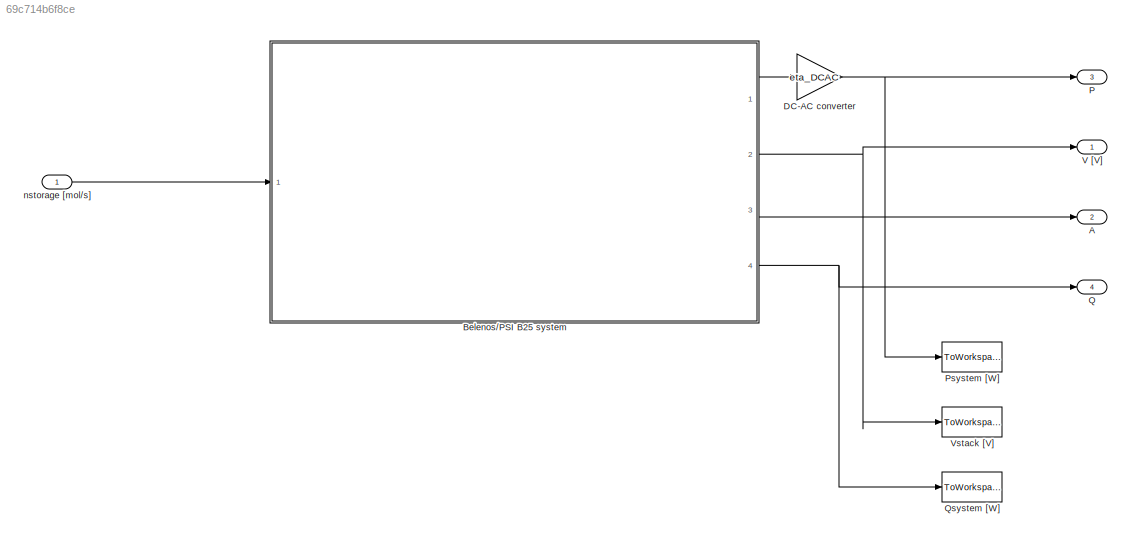
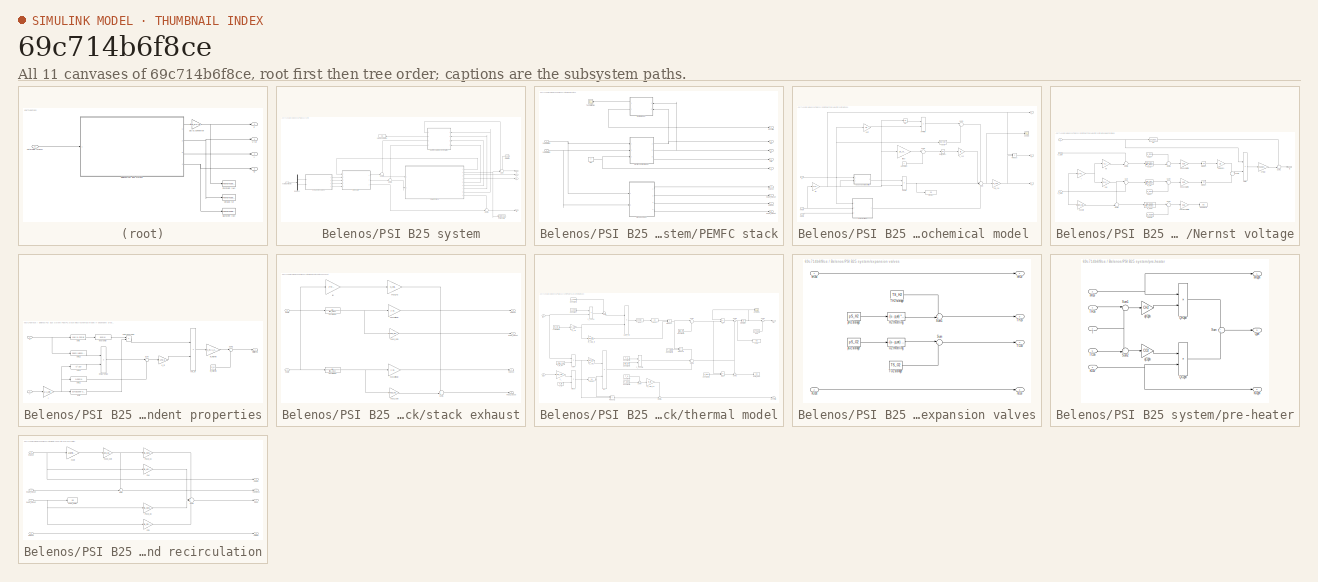
[diagram: thumbnail index - all 11 canvases of the model, root first then tree order]
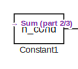
[diagram: Belenos/PSI B25 system/PEMFC stack/thermal model - part 1/3, top left region]
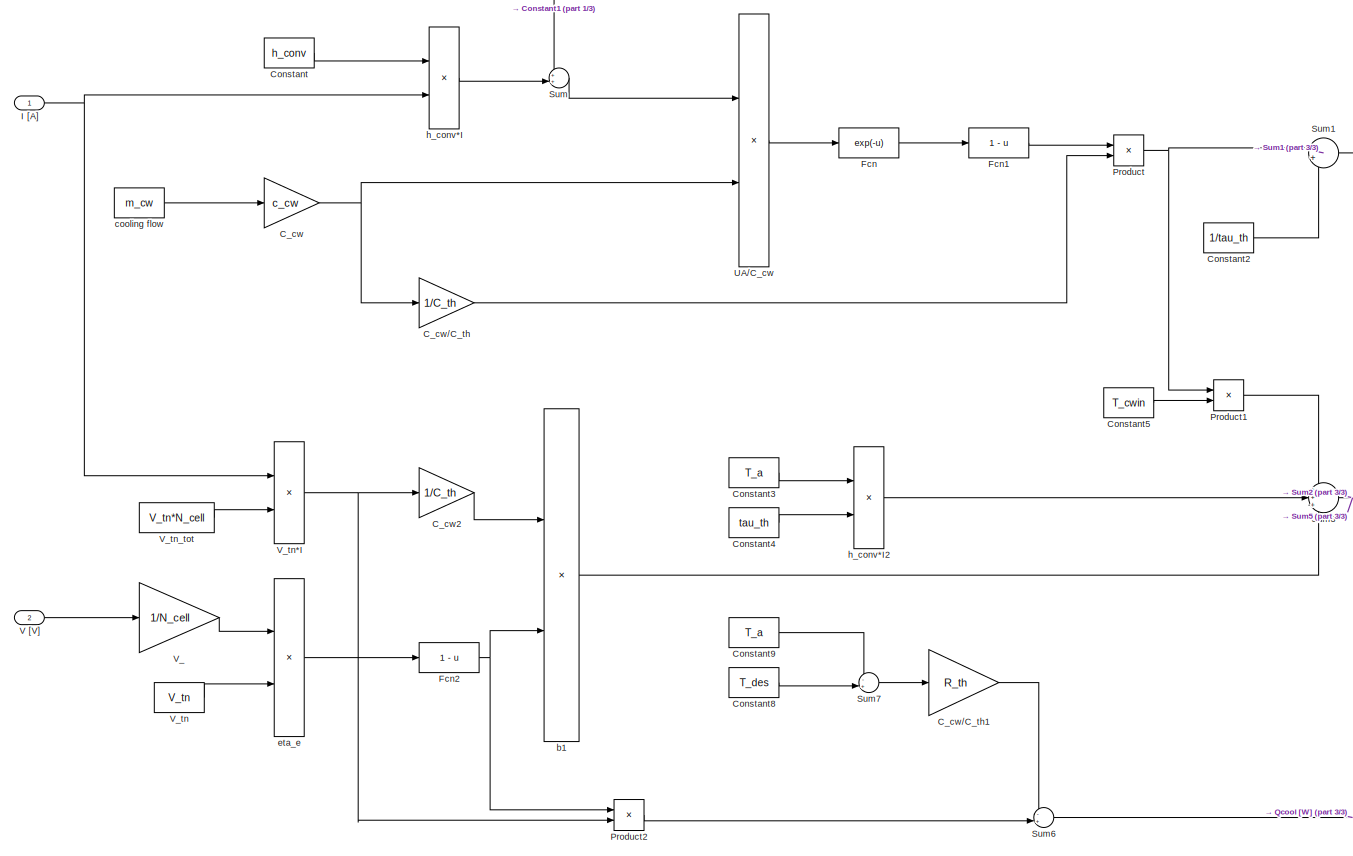
[diagram: Belenos/PSI B25 system/PEMFC stack/thermal model - part 2/3, left side, full height]
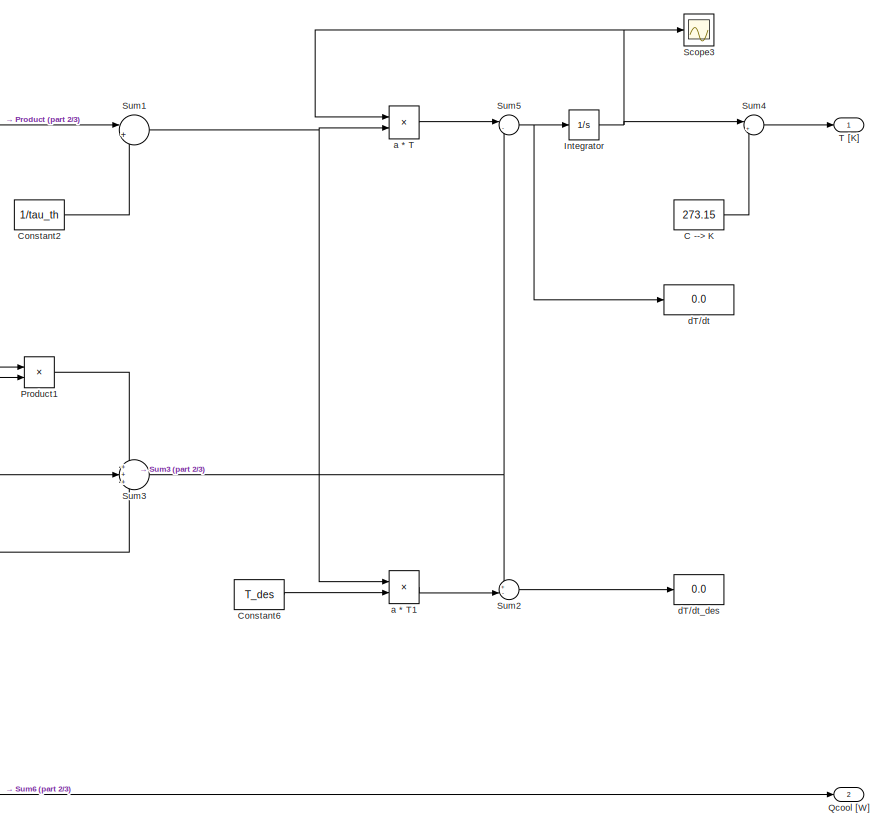
[diagram: Belenos/PSI B25 system/PEMFC stack/thermal model - part 3/3, right side, full height]
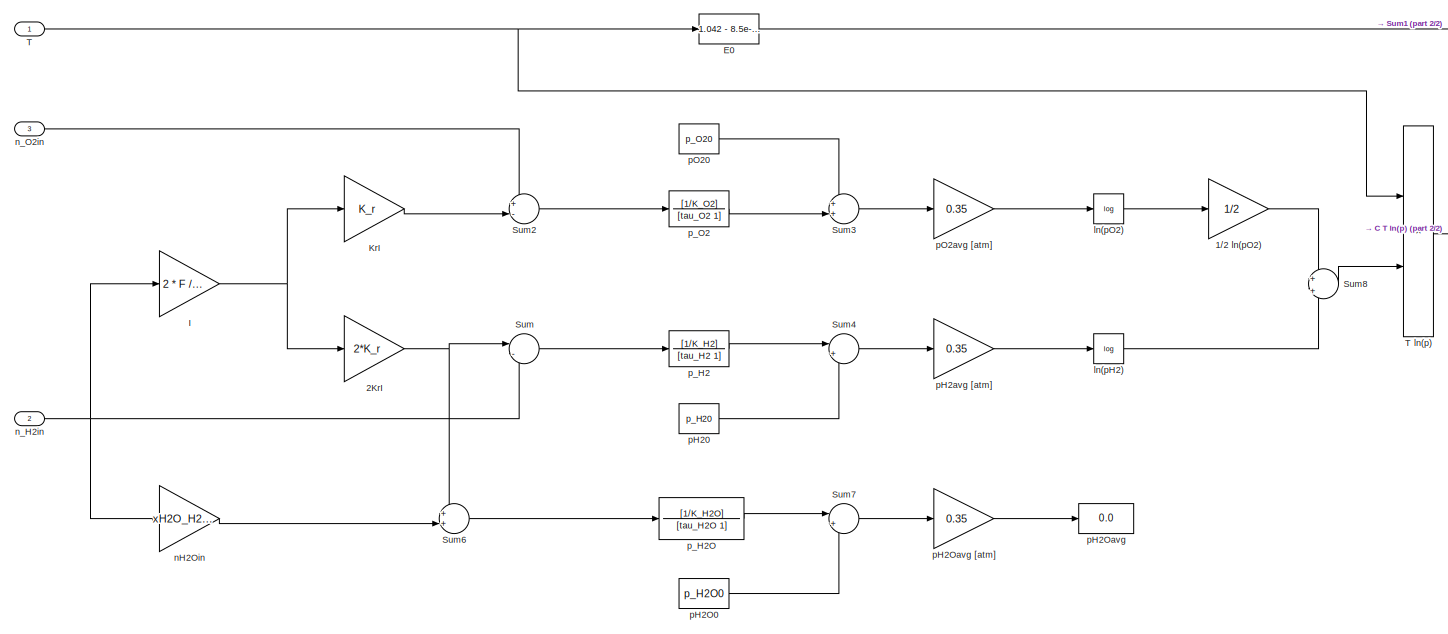
[diagram: Belenos/PSI B25 system/PEMFC stack/electrochemical model /Nernst voltage - part 1/2, most of the canvas]
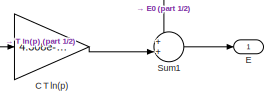
[diagram: Belenos/PSI B25 system/PEMFC stack/electrochemical model /Nernst voltage - part 2/2, middle right region]
MODEL slx_69c714b6f8ce
KIND model
CONFIG AbsTol = auto
CONFIG FixedStep = auto
CONFIG MaxStep = 1
CONFIG MinStep = 0.0001
CONFIG RelTol = 1e-3
CONFIG SampleTimeConstraint = Unconstrained
CONFIG Solver = ode45
CONFIG SolverMode = SingleTasking
CONFIG SolverName = ode45
CONFIG StartTime = 0.0
CONFIG StopTime = 350
BLOCK [Outport] A
  IconDisplay = Port number
  Port = 2
BLOCK [SubSystem] Belenos//PSI B25 system
  Ports = [1, 4]
  RequestExecContextInheritance = off
  Variant = off
BLOCK [Demux] Belenos//PSI B25 system/Demux1
  DisplayOption = bar
  Outputs = 2
  Ports = [1, 2]
BLOCK [Outport] Belenos//PSI B25 system/I
  IconDisplay = Port number
  Port = 3
BLOCK [Outport] Belenos//PSI B25 system/P
  IconDisplay = Port number
BLOCK [SubSystem] Belenos//PSI B25 system/PEMFC stack
  Ports = [2, 9]
  RequestExecContextInheritance = off
  Variant = off
BLOCK [Outport] Belenos//PSI B25 system/PEMFC stack/I [A]
  IconDisplay = Port number
  Port = 4
BLOCK [Outport] Belenos//PSI B25 system/PEMFC stack/P [W]
  IconDisplay = Port number
  Port = 2
BLOCK [Outport] Belenos//PSI B25 system/PEMFC stack/Qcool [W]
  IconDisplay = Port number
  Port = 9
BLOCK [Outport] Belenos//PSI B25 system/PEMFC stack/T
  IconDisplay = Port number
BLOCK [Constant] Belenos//PSI B25 system/PEMFC stack/T [K]
  Value = T
BLOCK [Scope] Belenos//PSI B25 system/PEMFC stack/T evolution [K]
  Ports = [1]
  ScopeSpecificationString = C++SS(StrPVP('SaveName','ScopeData1'),StrPVP('LimitDataPoints','on'),StrPVP('DataFormat','Array'),StrPVP('Decimation','1'),StrPVP('BlockParamSampleInput','off'))
BLOCK [Outport] Belenos//PSI B25 system/PEMFC stack/V [V] 
  IconDisplay = Port number
  Port = 3
BLOCK [SubSystem] Belenos//PSI B25 system/PEMFC stack/electrochemical model 
  Ports = [3, 3]
  RequestExecContextInheritance = off
  Variant = off
BLOCK [Constant] Belenos//PSI B25 system/PEMFC stack/electrochemical model /Constant
BLOCK [Display] Belenos//PSI B25 system/PEMFC stack/electrochemical model /Display
  Decimation = 1
  Ports = [1]
BLOCK [Outport] Belenos//PSI B25 system/PEMFC stack/electrochemical model /I
  IconDisplay = Port number
  Port = 2
BLOCK [Gain] Belenos//PSI B25 system/PEMFC stack/electrochemical model /I [A]
  Gain = 2 * F / (N_cell * lambda_H2)
  OutDataTypeStr = Inherit: Inherit via internal rule
  ParamDataTypeStr = Inherit: Inherit via internal rule
  SaturateOnIntegerOverflow = off
BLOCK [SubSystem] Belenos//PSI B25 system/PEMFC stack/electrochemical model /Nernst voltage
  Ports = [3, 1]
  RequestExecContextInheritance = off
  Variant = off
BLOCK [Gain] Belenos//PSI B25 system/PEMFC stack/electrochemical model /Nernst voltage/1//2 ln(pO2)
  Gain = 1/2
  OutDataTypeStr = Inherit: Inherit via internal rule
  ParamDataTypeStr = Inherit: Inherit via internal rule
  SaturateOnIntegerOverflow = off
BLOCK [Gain] Belenos//PSI B25 system/PEMFC stack/electrochemical model /Nernst voltage/2KrI
  Gain = 2*K_r
  OutDataTypeStr = Inherit: Inherit via internal rule
  ParamDataTypeStr = Inherit: Inherit via internal rule
  SaturateOnIntegerOverflow = off
BLOCK [Gain] Belenos//PSI B25 system/PEMFC stack/electrochemical model /Nernst voltage/C T ln(p)
  Gain = 4.308e-05
  OutDataTypeStr = Inherit: Inherit via internal rule
  ParamDataTypeStr = Inherit: Inherit via internal rule
  SaturateOnIntegerOverflow = off
BLOCK [Outport] Belenos//PSI B25 system/PEMFC stack/electrochemical model /Nernst voltage/E
  IconDisplay = Port number
BLOCK [Fcn] Belenos//PSI B25 system/PEMFC stack/electrochemical model /Nernst voltage/E0
  Expr = 1.042 - 8.5e-04 * (u - 298.15)
BLOCK [Gain] Belenos//PSI B25 system/PEMFC stack/electrochemical model /Nernst voltage/I
  Gain = 2 * F / (N_cell * lambda_H2)
  OutDataTypeStr = Inherit: Inherit via internal rule
  ParamDataTypeStr = Inherit: Inherit via internal rule
  SaturateOnIntegerOverflow = off
BLOCK [Gain] Belenos//PSI B25 system/PEMFC stack/electrochemical model /Nernst voltage/KrI
  Gain = K_r
  OutDataTypeStr = Inherit: Inherit via internal rule
  ParamDataTypeStr = Inherit: Inherit via internal rule
  SaturateOnIntegerOverflow = off
BLOCK [Sum] Belenos//PSI B25 system/PEMFC stack/electrochemical model /Nernst voltage/Sum
  IconShape = round
  InputSameDT = off
  Inputs = |-+
  OutDataTypeStr = Inherit: Inherit via internal rule
  Ports = [2, 1]
  SaturateOnIntegerOverflow = off
BLOCK [Sum] Belenos//PSI B25 system/PEMFC stack/electrochemical model /Nernst voltage/Sum1
  IconShape = round
  InputSameDT = off
  Inputs = ++|
  OutDataTypeStr = Inherit: Inherit via internal rule
  Ports = [2, 1]
  SaturateOnIntegerOverflow = off
BLOCK [Sum] Belenos//PSI B25 system/PEMFC stack/electrochemical model /Nernst voltage/Sum2
  IconShape = round
  InputSameDT = off
  Inputs = +-|
  OutDataTypeStr = Inherit: Inherit via internal rule
  Ports = [2, 1]
  SaturateOnIntegerOverflow = off
BLOCK [Sum] Belenos//PSI B25 system/PEMFC stack/electrochemical model /Nernst voltage/Sum3
  IconShape = round
  InputSameDT = off
  Inputs = ++|
  OutDataTypeStr = Inherit: Inherit via internal rule
  Ports = [2, 1]
  SaturateOnIntegerOverflow = off
BLOCK [Sum] Belenos//PSI B25 system/PEMFC stack/electrochemical model /Nernst voltage/Sum4
  IconShape = round
  InputSameDT = off
  Inputs = |++
  OutDataTypeStr = Inherit: Inherit via internal rule
  Ports = [2, 1]
  SaturateOnIntegerOverflow = off
BLOCK [Sum] Belenos//PSI B25 system/PEMFC stack/electrochemical model /Nernst voltage/Sum6
  IconShape = round
  InputSameDT = off
  Inputs = ++|
  OutDataTypeStr = Inherit: Inherit via internal rule
  Ports = [2, 1]
  SaturateOnIntegerOverflow = off
BLOCK [Sum] Belenos//PSI B25 system/PEMFC stack/electrochemical model /Nernst voltage/Sum7
  IconShape = round
  InputSameDT = off
  Inputs = |++
  OutDataTypeStr = Inherit: Inherit via internal rule
  Ports = [2, 1]
  SaturateOnIntegerOverflow = off
BLOCK [Sum] Belenos//PSI B25 system/PEMFC stack/electrochemical model /Nernst voltage/Sum8
  IconShape = round
  InputSameDT = off
  Inputs = +|+
  OutDataTypeStr = Inherit: Inherit via internal rule
  Ports = [2, 1]
  SaturateOnIntegerOverflow = off
BLOCK [Inport] Belenos//PSI B25 system/PEMFC stack/electrochemical model /Nernst voltage/T
  IconDisplay = Port number
BLOCK [Product] Belenos//PSI B25 system/PEMFC stack/electrochemical model /Nernst voltage/T ln(p)
  InputSameDT = off
  OutDataTypeStr = Inherit: Inherit via internal rule
  Ports = [2, 1]
  RndMeth = Floor
  SaturateOnIntegerOverflow = off
BLOCK [Math] Belenos//PSI B25 system/PEMFC stack/electrochemical model /Nernst voltage/ln(pH2)
  Operator = log
  Ports = [1, 1]
BLOCK [Math] Belenos//PSI B25 system/PEMFC stack/electrochemical model /Nernst voltage/ln(pO2)
  Operator = log
  Ports = [1, 1]
BLOCK [Gain] Belenos//PSI B25 system/PEMFC stack/electrochemical model /Nernst voltage/nH2Oin
  Gain = xH2O_H2 / (1 - xH2O_H2)
  OutDataTypeStr = Inherit: Inherit via internal rule
  ParamDataTypeStr = Inherit: Inherit via internal rule
  SaturateOnIntegerOverflow = off
BLOCK [Inport] Belenos//PSI B25 system/PEMFC stack/electrochemical model /Nernst voltage/n_H2in
  IconDisplay = Port number
  Port = 2
BLOCK [Inport] Belenos//PSI B25 system/PEMFC stack/electrochemical model /Nernst voltage/n_O2in
  IconDisplay = Port number
  Port = 3
BLOCK [Constant] Belenos//PSI B25 system/PEMFC stack/electrochemical model /Nernst voltage/pH20
  Value = p_H20
BLOCK [Constant] Belenos//PSI B25 system/PEMFC stack/electrochemical model /Nernst voltage/pH2O0
  Value = p_H2O0
BLOCK [Display] Belenos//PSI B25 system/PEMFC stack/electrochemical model /Nernst voltage/pH2Oavg
  Decimation = 1
  Ports = [1]
BLOCK [Gain] Belenos//PSI B25 system/PEMFC stack/electrochemical model /Nernst voltage/pH2Oavg [atm]
  Gain = 0.35
  OutDataTypeStr = Inherit: Inherit via internal rule
  ParamDataTypeStr = Inherit: Inherit via internal rule
  SaturateOnIntegerOverflow = off
BLOCK [Gain] Belenos//PSI B25 system/PEMFC stack/electrochemical model /Nernst voltage/pH2avg [atm]
  Gain = 0.35
  OutDataTypeStr = Inherit: Inherit via internal rule
  ParamDataTypeStr = Inherit: Inherit via internal rule
  SaturateOnIntegerOverflow = off
BLOCK [Constant] Belenos//PSI B25 system/PEMFC stack/electrochemical model /Nernst voltage/pO20
  Value = p_O20
BLOCK [Gain] Belenos//PSI B25 system/PEMFC stack/electrochemical model /Nernst voltage/pO2avg [atm]
  Gain = 0.35
  OutDataTypeStr = Inherit: Inherit via internal rule
  ParamDataTypeStr = Inherit: Inherit via internal rule
  SaturateOnIntegerOverflow = off
BLOCK [TransferFcn] Belenos//PSI B25 system/PEMFC stack/electrochemical model /Nernst voltage/p_H2
  ContinuousStateAttributes = 'p_H2'
  Denominator = [tau_H2 1]
  Numerator = [1/K_H2]
BLOCK [TransferFcn] Belenos//PSI B25 system/PEMFC stack/electrochemical model /Nernst voltage/p_H2O
  ContinuousStateAttributes = 'p_H2'
  Denominator = [tau_H2O 1]
  Numerator = [1/K_H2O]
BLOCK [TransferFcn] Belenos//PSI B25 system/PEMFC stack/electrochemical model /Nernst voltage/p_O2
  ContinuousStateAttributes = 'p_O2'
  Denominator = [tau_O2 1]
  Numerator = [1/K_O2]
BLOCK [Outport] Belenos//PSI B25 system/PEMFC stack/electrochemical model /P
  IconDisplay = Port number
  Port = 3
BLOCK [Product] Belenos//PSI B25 system/PEMFC stack/electrochemical model /Product
  InputSameDT = off
  OutDataTypeStr = Inherit: Inherit via internal rule
  Ports = [2, 1]
  RndMeth = Floor
  SaturateOnIntegerOverflow = off
BLOCK [Scope] Belenos//PSI B25 system/PEMFC stack/electrochemical model /Scope
  Ports = [1]
  ScopeSpecificationString = Simulink.scopes.TimeScopeBlockCfg('CurrentConfiguration', extmgr.ConfigurationSet(extmgr.Configuration('Core','General UI',true),extmgr.Configuration('Core','Source UI',true),extmgr.Configuration('Sources','WiredSimulink',true,'DataLoggingVariableName','ScopeData2'),extmgr.Configuration('Visuals','Time Domain',true,'SerializedDisplays',{struct('MinYLimReal','0.4864','MaxYLimReal','0.5312','YLabelR...<+1352ch>
BLOCK [Sum] Belenos//PSI B25 system/PEMFC stack/electrochemical model /Sum
  IconShape = round
  InputSameDT = off
  Inputs = ---|+
  OutDataTypeStr = Inherit: Inherit via internal rule
  Ports = [4, 1]
  SaturateOnIntegerOverflow = off
BLOCK [Sum] Belenos//PSI B25 system/PEMFC stack/electrochemical model /Sum1
  IconShape = round
  InputSameDT = off
  Inputs = |--
  OutDataTypeStr = Inherit: Inherit via internal rule
  Ports = [2, 1]
  SaturateOnIntegerOverflow = off
BLOCK [Sum] Belenos//PSI B25 system/PEMFC stack/electrochemical model /Sum2
  IconShape = round
  InputSameDT = off
  Inputs = |-+
  OutDataTypeStr = Inherit: Inherit via internal rule
  Ports = [2, 1]
  SaturateOnIntegerOverflow = off
BLOCK [Inport] Belenos//PSI B25 system/PEMFC stack/electrochemical model /T 
  IconDisplay = Port number
  Port = 3
BLOCK [SubSystem] Belenos//PSI B25 system/PEMFC stack/electrochemical model /T dependent properties
  Ports = [2, 1]
  RequestExecContextInheritance = off
  Variant = off
BLOCK [Inport] Belenos//PSI B25 system/PEMFC stack/electrochemical model /T dependent properties/I
  IconDisplay = Port number
  Port = 2
BLOCK [Gain] Belenos//PSI B25 system/PEMFC stack/electrochemical model /T dependent properties/K_m
  Gain = 178.6
  OutDataTypeStr = Inherit: Inherit via internal rule
  ParamDataTypeStr = Inherit: Inherit via internal rule
  SaturateOnIntegerOverflow = off
BLOCK [Constant] Belenos//PSI B25 system/PEMFC stack/electrochemical model /T dependent properties/R_el [ohm]
  Value = R_el
BLOCK [Gain] Belenos//PSI B25 system/PEMFC stack/electrochemical model /T dependent properties/R_m [ohm]
  Gain = z_m/A_cell
  OutDataTypeStr = Inherit: Inherit via internal rule
  ParamDataTypeStr = Inherit: Inherit via internal rule
  SaturateOnIntegerOverflow = off
BLOCK [Outport] Belenos//PSI B25 system/PEMFC stack/electrochemical model /T dependent properties/Rtot [ohm]
  IconDisplay = Port number
BLOCK [Sum] Belenos//PSI B25 system/PEMFC stack/electrochemical model /T dependent properties/Sum
  IconShape = round
  InputSameDT = off
  Inputs = |++
  OutDataTypeStr = Inherit: Inherit via internal rule
  Ports = [2, 1]
  SaturateOnIntegerOverflow = off
BLOCK [Sum] Belenos//PSI B25 system/PEMFC stack/electrochemical model /T dependent properties/Sum1
  IconShape = round
  InputSameDT = off
  Inputs = |++
  OutDataTypeStr = Inherit: Inherit via internal rule
  Ports = [2, 1]
  SaturateOnIntegerOverflow = off
BLOCK [Inport] Belenos//PSI B25 system/PEMFC stack/electrochemical model /T dependent properties/T
  IconDisplay = Port number
BLOCK [Fcn] Belenos//PSI B25 system/PEMFC stack/electrochemical model /T dependent properties/exp(phi3)
  Expr = exp(u)
BLOCK [Gain] Belenos//PSI B25 system/PEMFC stack/electrochemical model /T dependent properties/i
  Gain = 1/A_cell
  OutDataTypeStr = Inherit: Inherit via internal rule
  ParamDataTypeStr = Inherit: Inherit via internal rule
  SaturateOnIntegerOverflow = off
BLOCK [Fcn] Belenos//PSI B25 system/PEMFC stack/electrochemical model /T dependent properties/phi11
  Expr = 1+0.03*u
BLOCK [Fcn] Belenos//PSI B25 system/PEMFC stack/electrochemical model /T dependent properties/phi12
  Expr = 0.062*(u/303)^2
BLOCK [Product] Belenos//PSI B25 system/PEMFC stack/electrochemical model /T dependent properties/phi12*phi13
  InputSameDT = off
  OutDataTypeStr = Inherit: Inherit via internal rule
  Ports = [2, 1]
  RndMeth = Floor
  SaturateOnIntegerOverflow = off
BLOCK [Fcn] Belenos//PSI B25 system/PEMFC stack/electrochemical model /T dependent properties/phi13
  Expr = u^(2.5)
BLOCK [Fcn] Belenos//PSI B25 system/PEMFC stack/electrochemical model /T dependent properties/phi2
  Expr = psi-0.63056-3*u
BLOCK [Product] Belenos//PSI B25 system/PEMFC stack/electrochemical model /T dependent properties/phi2*exp(phi3)
  InputSameDT = off
  OutDataTypeStr = Inherit: Inherit via internal rule
  Ports = [2, 1]
  RndMeth = Floor
  SaturateOnIntegerOverflow = off
BLOCK [Fcn] Belenos//PSI B25 system/PEMFC stack/electrochemical model /T dependent properties/phi3
  Expr = 4.18*(u-303)/u
BLOCK [Product] Belenos//PSI B25 system/PEMFC stack/electrochemical model /T dependent properties/rho_m
  InputSameDT = off
  Inputs = /*
  OutDataTypeStr = Inherit: Inherit via internal rule
  Ports = [2, 1]
  RndMeth = Floor
  SaturateOnIntegerOverflow = off
BLOCK [Outport] Belenos//PSI B25 system/PEMFC stack/electrochemical model /V
  IconDisplay = Port number
BLOCK [Gain] Belenos//PSI B25 system/PEMFC stack/electrochemical model /V_con
  Gain = -B
  OutDataTypeStr = Inherit: Inherit via internal rule
  ParamDataTypeStr = Inherit: Inherit via internal rule
  SaturateOnIntegerOverflow = off
BLOCK [Fcn] Belenos//PSI B25 system/PEMFC stack/electrochemical model /Vact0
  Expr = (xi1 + xi2 * u + xi3 * u * log(c_O2))
BLOCK [Product] Belenos//PSI B25 system/PEMFC stack/electrochemical model /Vohm
  InputSameDT = off
  OutDataTypeStr = Inherit: Inherit via internal rule
  Ports = [2, 1]
  RndMeth = Floor
  SaturateOnIntegerOverflow = off
BLOCK [Gain] Belenos//PSI B25 system/PEMFC stack/electrochemical model /i//imax
  Gain = 1/(A_cell*i_max)
  OutDataTypeStr = Inherit: Inherit via internal rule
  ParamDataTypeStr = Inherit: Inherit via internal rule
  SaturateOnIntegerOverflow = off
BLOCK [Math] Belenos//PSI B25 system/PEMFC stack/electrochemical model /ln(1-i//i_max)
  Operator = log
  Ports = [1, 1]
BLOCK [Math] Belenos//PSI B25 system/PEMFC stack/electrochemical model /ln(I) 
  Operator = log
  Ports = [1, 1]
BLOCK [Inport] Belenos//PSI B25 system/PEMFC stack/electrochemical model /nH2in
  IconDisplay = Port number
BLOCK [Inport] Belenos//PSI B25 system/PEMFC stack/electrochemical model /nO2in
  IconDisplay = Port number
  Port = 2
BLOCK [Gain] Belenos//PSI B25 system/PEMFC stack/electrochemical model /v*N_cell
  Gain = N_cell
  OutDataTypeStr = Inherit: Inherit via internal rule
  ParamDataTypeStr = Inherit: Inherit via internal rule
  SaturateOnIntegerOverflow = off
BLOCK [Gain] Belenos//PSI B25 system/PEMFC stack/electrochemical model /xi4*T
  Gain = xi4
  OutDataTypeStr = Inherit: Inherit via internal rule
  ParamDataTypeStr = Inherit: Inherit via internal rule
  SaturateOnIntegerOverflow = off
BLOCK [Product] Belenos//PSI B25 system/PEMFC stack/electrochemical model /xi4*T*ln(I)
  InputSameDT = off
  OutDataTypeStr = Inherit: Inherit via internal rule
  Ports = [2, 1]
  RndMeth = Floor
  SaturateOnIntegerOverflow = off
BLOCK [Outport] Belenos//PSI B25 system/PEMFC stack/nH2O_H2out
  IconDisplay = Port number
  Port = 8
BLOCK [Outport] Belenos//PSI B25 system/PEMFC stack/nH2O_O2out
  IconDisplay = Port number
  Port = 6
BLOCK [Inport] Belenos//PSI B25 system/PEMFC stack/nH2in [mol//s]
  IconDisplay = Port number
BLOCK [Outport] Belenos//PSI B25 system/PEMFC stack/nH2out
  IconDisplay = Port number
  Port = 5
BLOCK [Inport] Belenos//PSI B25 system/PEMFC stack/nO2in [mol//s]
  IconDisplay = Port number
  Port = 2
BLOCK [Outport] Belenos//PSI B25 system/PEMFC stack/nO2out
  IconDisplay = Port number
  Port = 7
BLOCK [SubSystem] Belenos//PSI B25 system/PEMFC stack/stack exhaust
  Ports = [2, 4]
  RequestExecContextInheritance = off
  Variant = off
BLOCK [TransferFcn] Belenos//PSI B25 system/PEMFC stack/stack exhaust/H2 cell delay
  ContinuousStateAttributes = 'p_O2'
  Denominator = [tau_H2 1]
BLOCK [Gain] Belenos//PSI B25 system/PEMFC stack/stack exhaust/I [A]
  Gain = 2*F / (N_cell * lambda_H2)
  OutDataTypeStr = Inherit: Inherit via internal rule
  ParamDataTypeStr = Inherit: Inherit via internal rule
  SaturateOnIntegerOverflow = off
BLOCK [TransferFcn] Belenos//PSI B25 system/PEMFC stack/stack exhaust/O2 cell delay
  ContinuousStateAttributes = 'p_O2'
  Denominator = [tau_O2 1]
BLOCK [Sum] Belenos//PSI B25 system/PEMFC stack/stack exhaust/Sum1
  IconShape = round
  InputSameDT = off
  Inputs = ++|
  OutDataTypeStr = Inherit: Inherit via internal rule
  Ports = [2, 1]
  SaturateOnIntegerOverflow = off
BLOCK [Gain] Belenos//PSI B25 system/PEMFC stack/stack exhaust/nH2O_H2in
  Gain = xH2O_H2 / (1 - xH2O_H2)
  OutDataTypeStr = Inherit: Inherit via internal rule
  ParamDataTypeStr = Inherit: Inherit via internal rule
  SaturateOnIntegerOverflow = off
BLOCK [Outport] Belenos//PSI B25 system/PEMFC stack/stack exhaust/nH2O_H2out
  IconDisplay = Port number
  Port = 4
BLOCK [Gain] Belenos//PSI B25 system/PEMFC stack/stack exhaust/nH2O_O2in
  Gain = xH2O_O2 / (1 - xH2O_O2)
  OutDataTypeStr = Inherit: Inherit via internal rule
  ParamDataTypeStr = Inherit: Inherit via internal rule
  SaturateOnIntegerOverflow = off
BLOCK [Outport] Belenos//PSI B25 system/PEMFC stack/stack exhaust/nH2O_O2out
  IconDisplay = Port number
  Port = 2
BLOCK [Gain] Belenos//PSI B25 system/PEMFC stack/stack exhaust/nH2Or_H2
  Gain = N_cell/(2*F)
  OutDataTypeStr = Inherit: Inherit via internal rule
  ParamDataTypeStr = Inherit: Inherit via internal rule
  SaturateOnIntegerOverflow = off
BLOCK [Inport] Belenos//PSI B25 system/PEMFC stack/stack exhaust/nH2in
  IconDisplay = Port number
BLOCK [Outport] Belenos//PSI B25 system/PEMFC stack/stack exhaust/nH2out
  IconDisplay = Port number
BLOCK [Gain] Belenos//PSI B25 system/PEMFC stack/stack exhaust/nH2out [mol//s]
  Gain = 1 - 1/lambda_H2
  OutDataTypeStr = Inherit: Inherit via internal rule
  ParamDataTypeStr = Inherit: Inherit via internal rule
  SaturateOnIntegerOverflow = off
BLOCK [Inport] Belenos//PSI B25 system/PEMFC stack/stack exhaust/nO2in
  IconDisplay = Port number
  Port = 2
BLOCK [Outport] Belenos//PSI B25 system/PEMFC stack/stack exhaust/nO2out
  IconDisplay = Port number
  Port = 3
BLOCK [Gain] Belenos//PSI B25 system/PEMFC stack/stack exhaust/nO2out [mol//s]
  Gain = 1 - 1/lambda_O2
  OutDataTypeStr = Inherit: Inherit via internal rule
  ParamDataTypeStr = Inherit: Inherit via internal rule
  SaturateOnIntegerOverflow = off
BLOCK [SubSystem] Belenos//PSI B25 system/PEMFC stack/thermal model
  Ports = [2, 2]
  RequestExecContextInheritance = off
  Variant = off
BLOCK [Constant] Belenos//PSI B25 system/PEMFC stack/thermal model/C --> K
  Value = 273.15
BLOCK [Gain] Belenos//PSI B25 system/PEMFC stack/thermal model/C_cw
  Gain = c_cw
  OutDataTypeStr = Inherit: Inherit via internal rule
  ParamDataTypeStr = Inherit: Inherit via internal rule
  SaturateOnIntegerOverflow = off
BLOCK [Gain] Belenos//PSI B25 system/PEMFC stack/thermal model/C_cw//C_th
  Gain = 1/C_th
  OutDataTypeStr = Inherit: Inherit via internal rule
  ParamDataTypeStr = Inherit: Inherit via internal rule
  SaturateOnIntegerOverflow = off
BLOCK [Gain] Belenos//PSI B25 system/PEMFC stack/thermal model/C_cw//C_th1
  Gain = R_th
  OutDataTypeStr = Inherit: Inherit via internal rule
  ParamDataTypeStr = Inherit: Inherit via internal rule
  SaturateOnIntegerOverflow = off
BLOCK [Gain] Belenos//PSI B25 system/PEMFC stack/thermal model/C_cw2
  Gain = 1/C_th
  OutDataTypeStr = Inherit: Inherit via internal rule
  ParamDataTypeStr = Inherit: Inherit via internal rule
  SaturateOnIntegerOverflow = off
BLOCK [Constant] Belenos//PSI B25 system/PEMFC stack/thermal model/Constant
  Value = h_conv
BLOCK [Constant] Belenos//PSI B25 system/PEMFC stack/thermal model/Constant1
  Value = h_cond
BLOCK [Constant] Belenos//PSI B25 system/PEMFC stack/thermal model/Constant2
  Value = 1/tau_th
BLOCK [Constant] Belenos//PSI B25 system/PEMFC stack/thermal model/Constant3
  Value = T_a
BLOCK [Constant] Belenos//PSI B25 system/PEMFC stack/thermal model/Constant4
  Value = tau_th
BLOCK [Constant] Belenos//PSI B25 system/PEMFC stack/thermal model/Constant5
  Value = T_cwin
BLOCK [Constant] Belenos//PSI B25 system/PEMFC stack/thermal model/Constant6
  Value = T_des
BLOCK [Constant] Belenos//PSI B25 system/PEMFC stack/thermal model/Constant8
  Value = T_des
BLOCK [Constant] Belenos//PSI B25 system/PEMFC stack/thermal model/Constant9
  Value = T_a
BLOCK [Fcn] Belenos//PSI B25 system/PEMFC stack/thermal model/Fcn
  Expr = exp(-u)
BLOCK [Fcn] Belenos//PSI B25 system/PEMFC stack/thermal model/Fcn1
  Expr = 1 - u
BLOCK [Fcn] Belenos//PSI B25 system/PEMFC stack/thermal model/Fcn2
  Expr = 1 - u
BLOCK [Inport] Belenos//PSI B25 system/PEMFC stack/thermal model/I [A]
  IconDisplay = Port number
BLOCK [Integrator] Belenos//PSI B25 system/PEMFC stack/thermal model/Integrator
  AbsoluteTolerance = 1e-6
  InitialCondition = T0
  Ports = [1, 1]
BLOCK [Product] Belenos//PSI B25 system/PEMFC stack/thermal model/Product
  InputSameDT = off
  OutDataTypeStr = Inherit: Inherit via internal rule
  Ports = [2, 1]
  RndMeth = Floor
  SaturateOnIntegerOverflow = off
BLOCK [Product] Belenos//PSI B25 system/PEMFC stack/thermal model/Product1
  InputSameDT = off
  OutDataTypeStr = Inherit: Inherit via internal rule
  Ports = [2, 1]
  RndMeth = Floor
  SaturateOnIntegerOverflow = off
BLOCK [Product] Belenos//PSI B25 system/PEMFC stack/thermal model/Product2
  InputSameDT = off
  OutDataTypeStr = Inherit: Inherit via internal rule
  Ports = [2, 1]
  RndMeth = Floor
  SaturateOnIntegerOverflow = off
BLOCK [Outport] Belenos//PSI B25 system/PEMFC stack/thermal model/Qcool [W]
  IconDisplay = Port number
  Port = 2
BLOCK [Scope] Belenos//PSI B25 system/PEMFC stack/thermal model/Scope3
  Ports = [1]
  ScopeSpecificationString = Simulink.scopes.TimeScopeBlockCfg('CurrentConfiguration', extmgr.ConfigurationSet(extmgr.Configuration('Core','General UI',true),extmgr.Configuration('Core','Source UI',true),extmgr.Configuration('Sources','WiredSimulink',true,'DataLoggingVariableName','ScopeData1'),extmgr.Configuration('Visuals','Time Domain',true,'SerializedDisplays',{struct('MinYLimReal','16.0966','MaxYLimReal','56.62462','YLab...<+1423ch>
BLOCK [Sum] Belenos//PSI B25 system/PEMFC stack/thermal model/Sum
  IconShape = round
  InputSameDT = off
  Inputs = ++|
  OutDataTypeStr = Inherit: Inherit via internal rule
  Ports = [2, 1]
  SaturateOnIntegerOverflow = off
BLOCK [Sum] Belenos//PSI B25 system/PEMFC stack/thermal model/Sum1
  IconShape = round
  InputSameDT = off
  Inputs = |++
  OutDataTypeStr = Inherit: Inherit via internal rule
  Ports = [2, 1]
  SaturateOnIntegerOverflow = off
BLOCK [Sum] Belenos//PSI B25 system/PEMFC stack/thermal model/Sum2
  IconShape = round
  InputSameDT = off
  Inputs = +-|
  OutDataTypeStr = Inherit: Inherit via internal rule
  Ports = [2, 1]
  SaturateOnIntegerOverflow = off
BLOCK [Sum] Belenos//PSI B25 system/PEMFC stack/thermal model/Sum3
  IconShape = round
  InputSameDT = off
  Inputs = +++
  OutDataTypeStr = Inherit: Inherit via internal rule
  Ports = [3, 1]
  SaturateOnIntegerOverflow = off
BLOCK [Sum] Belenos//PSI B25 system/PEMFC stack/thermal model/Sum4
  IconShape = round
  InputSameDT = off
  Inputs = |++
  OutDataTypeStr = Inherit: Inherit via internal rule
  Ports = [2, 1]
  SaturateOnIntegerOverflow = off
BLOCK [Sum] Belenos//PSI B25 system/PEMFC stack/thermal model/Sum5
  IconShape = round
  InputSameDT = off
  Inputs = |-+
  OutDataTypeStr = Inherit: Inherit via internal rule
  Ports = [2, 1]
  SaturateOnIntegerOverflow = off
BLOCK [Sum] Belenos//PSI B25 system/PEMFC stack/thermal model/Sum6
  IconShape = round
  InputSameDT = off
  Inputs = -+|
  OutDataTypeStr = Inherit: Inherit via internal rule
  Ports = [2, 1]
  SaturateOnIntegerOverflow = off
BLOCK [Sum] Belenos//PSI B25 system/PEMFC stack/thermal model/Sum7
  IconShape = round
  InputSameDT = off
  Inputs = -+|
  OutDataTypeStr = Inherit: Inherit via internal rule
  Ports = [2, 1]
  SaturateOnIntegerOverflow = off
BLOCK [Outport] Belenos//PSI B25 system/PEMFC stack/thermal model/T [K]
  IconDisplay = Port number
BLOCK [Product] Belenos//PSI B25 system/PEMFC stack/thermal model/UA//C_cw
  InputSameDT = off
  Inputs = */
  OutDataTypeStr = Inherit: Inherit via internal rule
  Ports = [2, 1]
  RndMeth = Floor
  SaturateOnIntegerOverflow = off
BLOCK [Inport] Belenos//PSI B25 system/PEMFC stack/thermal model/V [V]
  IconDisplay = Port number
  Port = 2
BLOCK [Gain] Belenos//PSI B25 system/PEMFC stack/thermal model/V_
  Gain = 1/N_cell
  OutDataTypeStr = Inherit: Inherit via internal rule
  ParamDataTypeStr = Inherit: Inherit via internal rule
  SaturateOnIntegerOverflow = off
BLOCK [Constant] Belenos//PSI B25 system/PEMFC stack/thermal model/V_tn
  Value = V_tn
BLOCK [Product] Belenos//PSI B25 system/PEMFC stack/thermal model/V_tn*I
  InputSameDT = off
  OutDataTypeStr = Inherit: Inherit via internal rule
  Ports = [2, 1]
  RndMeth = Floor
  SaturateOnIntegerOverflow = off
BLOCK [Constant] Belenos//PSI B25 system/PEMFC stack/thermal model/V_tn_tot
  Value = V_tn*N_cell
BLOCK [Product] Belenos//PSI B25 system/PEMFC stack/thermal model/a * T
  InputSameDT = off
  OutDataTypeStr = Inherit: Inherit via internal rule
  Ports = [2, 1]
  RndMeth = Floor
  SaturateOnIntegerOverflow = off
BLOCK [Product] Belenos//PSI B25 system/PEMFC stack/thermal model/a * T1
  InputSameDT = off
  OutDataTypeStr = Inherit: Inherit via internal rule
  Ports = [2, 1]
  RndMeth = Floor
  SaturateOnIntegerOverflow = off
BLOCK [Product] Belenos//PSI B25 system/PEMFC stack/thermal model/b1
  InputSameDT = off
  OutDataTypeStr = Inherit: Inherit via internal rule
  Ports = [2, 1]
  RndMeth = Floor
  SaturateOnIntegerOverflow = off
BLOCK [Constant] Belenos//PSI B25 system/PEMFC stack/thermal model/cooling flow
  Value = m_cw
BLOCK [Display] Belenos//PSI B25 system/PEMFC stack/thermal model/dT//dt
  Decimation = 1
  Ports = [1]
BLOCK [Display] Belenos//PSI B25 system/PEMFC stack/thermal model/dT//dt_des
  Decimation = 1
  Ports = [1]
BLOCK [Product] Belenos//PSI B25 system/PEMFC stack/thermal model/eta_e
  InputSameDT = off
  Inputs = */
  OutDataTypeStr = Inherit: Inherit via internal rule
  Ports = [2, 1]
  RndMeth = Floor
  SaturateOnIntegerOverflow = off
BLOCK [Product] Belenos//PSI B25 system/PEMFC stack/thermal model/h_conv*I
  InputSameDT = off
  OutDataTypeStr = Inherit: Inherit via internal rule
  Ports = [2, 1]
  RndMeth = Floor
  SaturateOnIntegerOverflow = off
BLOCK [Product] Belenos//PSI B25 system/PEMFC stack/thermal model/h_conv*I2
  InputSameDT = off
  Inputs = */
  OutDataTypeStr = Inherit: Inherit via internal rule
  Ports = [2, 1]
  RndMeth = Floor
  SaturateOnIntegerOverflow = off
BLOCK [ToWorkspace] Belenos//PSI B25 system/Pstack [W]
  FixptAsFi = on
  MaxDataPoints = inf
  Ports = [1]
  SampleTime = -1
  Save2DSignal = 3-D array (concatenate along third dimension)
  SaveFormat = Timeseries
  VariableName = Pstack
BLOCK [Outport] Belenos//PSI B25 system/Q
  IconDisplay = Port number
  Port = 4
BLOCK [Sum] Belenos//PSI B25 system/Sum
  IconShape = round
  InputSameDT = off
  Inputs = --+||
  OutDataTypeStr = Inherit: Inherit via internal rule
  Ports = [3, 1]
  SaturateOnIntegerOverflow = off
BLOCK [Sum] Belenos//PSI B25 system/Sum1
  IconShape = round
  InputSameDT = off
  Inputs = ++|
  OutDataTypeStr = Inherit: Inherit via internal rule
  Ports = [2, 1]
  SaturateOnIntegerOverflow = off
BLOCK [Sum] Belenos//PSI B25 system/Sum2
  IconShape = round
  InputSameDT = off
  Inputs = +-|
  OutDataTypeStr = Inherit: Inherit via internal rule
  Ports = [2, 1]
  SaturateOnIntegerOverflow = off
BLOCK [Sum] Belenos//PSI B25 system/Sum3
  IconShape = round
  InputSameDT = off
  Inputs = ++|
  OutDataTypeStr = Inherit: Inherit via internal rule
  Ports = [2, 1]
  SaturateOnIntegerOverflow = off
BLOCK [Outport] Belenos//PSI B25 system/V
  IconDisplay = Port number
  Port = 2
BLOCK [SubSystem] Belenos//PSI B25 system/expansion valves
  Ports = [2, 4]
  RequestExecContextInheritance = off
  Variant = off
BLOCK [Fcn] Belenos//PSI B25 system/expansion valves/H2 throttling
  Expr = -(u - p_an) * JT_H2
BLOCK [Fcn] Belenos//PSI B25 system/expansion valves/O2 throttling
  Expr = -(u - p_cat) * JT_O2
BLOCK [Sum] Belenos//PSI B25 system/expansion valves/Sum
  IconShape = round
  InputSameDT = off
  Inputs = |++
  OutDataTypeStr = Inherit: Inherit via internal rule
  Ports = [2, 1]
  SaturateOnIntegerOverflow = off
BLOCK [Sum] Belenos//PSI B25 system/expansion valves/Sum1
  IconShape = round
  InputSameDT = off
  Inputs = ++|
  OutDataTypeStr = Inherit: Inherit via internal rule
  Ports = [2, 1]
  SaturateOnIntegerOverflow = off
BLOCK [Constant] Belenos//PSI B25 system/expansion valves/TH2 storage
  Value = TS_H2
BLOCK [Outport] Belenos//PSI B25 system/expansion valves/TH2v
  IconDisplay = Port number
  Port = 3
BLOCK [Constant] Belenos//PSI B25 system/expansion valves/TO2 storage
  Value = TS_O2
BLOCK [Outport] Belenos//PSI B25 system/expansion valves/TO2v
  IconDisplay = Port number
  Port = 4
BLOCK [Inport] Belenos//PSI B25 system/expansion valves/nH2st
  IconDisplay = Port number
BLOCK [Outport] Belenos//PSI B25 system/expansion valves/nH2v
  IconDisplay = Port number
BLOCK [Inport] Belenos//PSI B25 system/expansion valves/nO2st
  IconDisplay = Port number
  Port = 2
BLOCK [Outport] Belenos//PSI B25 system/expansion valves/nO2v
  IconDisplay = Port number
  Port = 2
BLOCK [Constant] Belenos//PSI B25 system/expansion valves/pH2 storage
  Value = pS_H2
BLOCK [Constant] Belenos//PSI B25 system/expansion valves/pO2 storage
  Value = pS_O2
BLOCK [Constant] Belenos//PSI B25 system/gamma
  Value = P_gamma
BLOCK [Display] Belenos//PSI B25 system/nH2Osep [mol//s]
  Decimation = 1
  Ports = [1]
BLOCK [Inport] Belenos//PSI B25 system/nstorage [mol//s]
  IconDisplay = Port number
BLOCK [SubSystem] Belenos//PSI B25 system/pre-heater
  Ports = [5, 3]
  RequestExecContextInheritance = off
  Variant = off
BLOCK [Product] Belenos//PSI B25 system/pre-heater/QH2ph
  InputSameDT = off
  OutDataTypeStr = Inherit: Inherit via internal rule
  Ports = [2, 1]
  RndMeth = Floor
  SaturateOnIntegerOverflow = off
BLOCK [Product] Belenos//PSI B25 system/pre-heater/QO2ph
  InputSameDT = off
  OutDataTypeStr = Inherit: Inherit via internal rule
  Ports = [2, 1]
  RndMeth = Floor
  SaturateOnIntegerOverflow = off
BLOCK [Outport] Belenos//PSI B25 system/pre-heater/Qph
  IconDisplay = Port number
  Port = 3
BLOCK [Sum] Belenos//PSI B25 system/pre-heater/Sum
  IconShape = round
  InputSameDT = off
  Inputs = +|+
  OutDataTypeStr = Inherit: Inherit via internal rule
  Ports = [2, 1]
  SaturateOnIntegerOverflow = off
BLOCK [Sum] Belenos//PSI B25 system/pre-heater/Sum1
  IconShape = round
  InputSameDT = off
  Inputs = |-+
  OutDataTypeStr = Inherit: Inherit via internal rule
  Ports = [2, 1]
  SaturateOnIntegerOverflow = off
BLOCK [Sum] Belenos//PSI B25 system/pre-heater/Sum2
  IconShape = round
  InputSameDT = off
  Inputs = +-|
  OutDataTypeStr = Inherit: Inherit via internal rule
  Ports = [2, 1]
  SaturateOnIntegerOverflow = off
BLOCK [Inport] Belenos//PSI B25 system/pre-heater/T
  IconDisplay = Port number
BLOCK [Inport] Belenos//PSI B25 system/pre-heater/TH2v
  IconDisplay = Port number
  Port = 4
BLOCK [Inport] Belenos//PSI B25 system/pre-heater/TO2v
  IconDisplay = Port number
  Port = 5
BLOCK [Outport] Belenos//PSI B25 system/pre-heater/nH2ph
  IconDisplay = Port number
BLOCK [Inport] Belenos//PSI B25 system/pre-heater/nH2v
  IconDisplay = Port number
  Port = 2
BLOCK [Outport] Belenos//PSI B25 system/pre-heater/nO2ph
  IconDisplay = Port number
  Port = 2
BLOCK [Inport] Belenos//PSI B25 system/pre-heater/nO2v
  IconDisplay = Port number
  Port = 3
BLOCK [Gain] Belenos//PSI B25 system/pre-heater/qH2ph
  Gain = CH2
  OutDataTypeStr = Inherit: Inherit via internal rule
  ParamDataTypeStr = Inherit: Inherit via internal rule
  SaturateOnIntegerOverflow = off
BLOCK [Gain] Belenos//PSI B25 system/pre-heater/qO2ph
  Gain = CO2
  OutDataTypeStr = Inherit: Inherit via internal rule
  ParamDataTypeStr = Inherit: Inherit via internal rule
  SaturateOnIntegerOverflow = off
BLOCK [SubSystem] Belenos//PSI B25 system/water separator and recirculation
  Ports = [4, 4]
  RequestExecContextInheritance = off
  Variant = off
BLOCK [Gain] Belenos//PSI B25 system/water separator and recirculation/PH2
  Gain = mu_H2 * 100000 / 0.6
  OutDataTypeStr = Inherit: Inherit via internal rule
  ParamDataTypeStr = Inherit: Inherit via internal rule
  SaturateOnIntegerOverflow = off
BLOCK [Gain] Belenos//PSI B25 system/water separator and recirculation/PH2O_H2
  Gain = mu_H2O * 100000 / 0.6
  OutDataTypeStr = Inherit: Inherit via internal rule
  ParamDataTypeStr = Inherit: Inherit via internal rule
  SaturateOnIntegerOverflow = off
BLOCK [Gain] Belenos//PSI B25 system/water separator and recirculation/PH2O_O2
  Gain = mu_H2O * 100000 / 0.6
  OutDataTypeStr = Inherit: Inherit via internal rule
  ParamDataTypeStr = Inherit: Inherit via internal rule
  SaturateOnIntegerOverflow = off
BLOCK [Gain] Belenos//PSI B25 system/water separator and recirculation/PO2
  Gain = mu_O2 * 100000 / 0.6
  OutDataTypeStr = Inherit: Inherit via internal rule
  ParamDataTypeStr = Inherit: Inherit via internal rule
  SaturateOnIntegerOverflow = off
BLOCK [Outport] Belenos//PSI B25 system/water separator and recirculation/Paux
  IconDisplay = Port number
BLOCK [Sum] Belenos//PSI B25 system/water separator and recirculation/Sum
  IconShape = round
  InputSameDT = off
  Inputs = -+|
  OutDataTypeStr = Inherit: Inherit via internal rule
  Ports = [2, 1]
  SaturateOnIntegerOverflow = off
BLOCK [Sum] Belenos//PSI B25 system/water separator and recirculation/Sum1
  IconShape = round
  InputSameDT = off
  Inputs = ++++
  OutDataTypeStr = Inherit: Inherit via internal rule
  Ports = [4, 1]
  SaturateOnIntegerOverflow = off
BLOCK [Gain] Belenos//PSI B25 system/water separator and recirculation/nH2O_H2in
  Gain = xH2O_H2 / (1 - xH2O_H2)
  OutDataTypeStr = Inherit: Inherit via internal rule
  ParamDataTypeStr = Inherit: Inherit via internal rule
  SaturateOnIntegerOverflow = off
BLOCK [Inport] Belenos//PSI B25 system/water separator and recirculation/nH2O_H2out 
  IconDisplay = Port number
BLOCK [Inport] Belenos//PSI B25 system/water separator and recirculation/nH2O_O2out
  IconDisplay = Port number
  Port = 3
BLOCK [Display] Belenos//PSI B25 system/water separator and recirculation/nH2O_O2rec
  Decimation = 1
  Ports = [1]
BLOCK [Outport] Belenos//PSI B25 system/water separator and recirculation/nH2Osep
  IconDisplay = Port number
  Port = 2
BLOCK [Gain] Belenos//PSI B25 system/water separator and recirculation/nH2in
  Gain = 1/(lambda_H2 - 1)
  OutDataTypeStr = Inherit: Inherit via internal rule
  ParamDataTypeStr = Inherit: Inherit via internal rule
  SaturateOnIntegerOverflow = off
BLOCK [Inport] Belenos//PSI B25 system/water separator and recirculation/nH2out
  IconDisplay = Port number
  Port = 4
BLOCK [Outport] Belenos//PSI B25 system/water separator and recirculation/nH2rec
  IconDisplay = Port number
  Port = 3
BLOCK [Inport] Belenos//PSI B25 system/water separator and recirculation/nO2out
  IconDisplay = Port number
  Port = 2
BLOCK [Outport] Belenos//PSI B25 system/water separator and recirculation/nO2rec
  IconDisplay = Port number
  Port = 4
BLOCK [Gain] DC-AC converter
  Gain = eta_DCAC
  OutDataTypeStr = Inherit: Inherit via internal rule
  ParamDataTypeStr = Inherit: Inherit via internal rule
  SaturateOnIntegerOverflow = off
BLOCK [Outport] P
  IconDisplay = Port number
  Port = 3
BLOCK [ToWorkspace] Psystem [W]
  FixptAsFi = on
  MaxDataPoints = inf
  Ports = [1]
  SampleTime = -1
  Save2DSignal = 3-D array (concatenate along third dimension)
  SaveFormat = Timeseries
  VariableName = Psystem
BLOCK [Outport] Q
  IconDisplay = Port number
  Port = 4
BLOCK [ToWorkspace] Qsystem [W]
  FixptAsFi = on
  MaxDataPoints = inf
  Ports = [1]
  SampleTime = -1
  Save2DSignal = 3-D array (concatenate along third dimension)
  SaveFormat = Timeseries
  VariableName = Qsystem
BLOCK [Outport] V [V]
  IconDisplay = Port number
BLOCK [ToWorkspace] Vstack [V]
  FixptAsFi = on
  MaxDataPoints = inf
  Ports = [1]
  SampleTime = -1
  Save2DSignal = 3-D array (concatenate along third dimension)
  SaveFormat = Timeseries
  VariableName = Vstack
BLOCK [Inport] nstorage [mol//s]
  IconDisplay = Port number
LINE Belenos//PSI B25 system/Demux1:1 -> Belenos//PSI B25 system/expansion valves:1
LINE Belenos//PSI B25 system/Demux1:2 -> Belenos//PSI B25 system/expansion valves:2
NET Belenos//PSI B25 system/PEMFC stack/T [K]:1 -> Belenos//PSI B25 system/PEMFC stack/T:1, Belenos//PSI B25 system/PEMFC stack/electrochemical model :3
LINE Belenos//PSI B25 system/PEMFC stack/electrochemical model /Constant:1 -> Belenos//PSI B25 system/PEMFC stack/electrochemical model /Sum2:2
NET Belenos//PSI B25 system/PEMFC stack/electrochemical model /I [A]:1 -> Belenos//PSI B25 system/PEMFC stack/electrochemical model /I:1, Belenos//PSI B25 system/PEMFC stack/electrochemical model /Product:1, Belenos//PSI B25 system/PEMFC stack/electrochemical model /T dependent properties:2, Belenos//PSI B25 system/PEMFC stack/electrochemical model /Vohm:2, Belenos//PSI B25 system/PEMFC stack/electrochemical model /i//imax:1, Belenos//PSI B25 system/PEMFC stack/electrochemical model /ln(I) :1
LINE Belenos//PSI B25 system/PEMFC stack/electrochemical model /Nernst voltage/1//2 ln(pO2):1 -> Belenos//PSI B25 system/PEMFC stack/electrochemical model /Nernst voltage/Sum8:1
NET Belenos//PSI B25 system/PEMFC stack/electrochemical model /Nernst voltage/2KrI:1 -> Belenos//PSI B25 system/PEMFC stack/electrochemical model /Nernst voltage/Sum6:1, Belenos//PSI B25 system/PEMFC stack/electrochemical model /Nernst voltage/Sum:1
LINE Belenos//PSI B25 system/PEMFC stack/electrochemical model /Nernst voltage/C T ln(p):1 -> Belenos//PSI B25 system/PEMFC stack/electrochemical model /Nernst voltage/Sum1:2
LINE Belenos//PSI B25 system/PEMFC stack/electrochemical model /Nernst voltage/E0:1 -> Belenos//PSI B25 system/PEMFC stack/electrochemical model /Nernst voltage/Sum1:1
NET Belenos//PSI B25 system/PEMFC stack/electrochemical model /Nernst voltage/I:1 -> Belenos//PSI B25 system/PEMFC stack/electrochemical model /Nernst voltage/2KrI:1, Belenos//PSI B25 system/PEMFC stack/electrochemical model /Nernst voltage/KrI:1
LINE Belenos//PSI B25 system/PEMFC stack/electrochemical model /Nernst voltage/KrI:1 -> Belenos//PSI B25 system/PEMFC stack/electrochemical model /Nernst voltage/Sum2:2
LINE Belenos//PSI B25 system/PEMFC stack/electrochemical model /Nernst voltage/Sum1:1 -> Belenos//PSI B25 system/PEMFC stack/electrochemical model /Nernst voltage/E:1
LINE Belenos//PSI B25 system/PEMFC stack/electrochemical model /Nernst voltage/Sum2:1 -> Belenos//PSI B25 system/PEMFC stack/electrochemical model /Nernst voltage/p_O2:1
LINE Belenos//PSI B25 system/PEMFC stack/electrochemical model /Nernst voltage/Sum3:1 -> Belenos//PSI B25 system/PEMFC stack/electrochemical model /Nernst voltage/pO2avg [atm]:1
LINE Belenos//PSI B25 system/PEMFC stack/electrochemical model /Nernst voltage/Sum4:1 -> Belenos//PSI B25 system/PEMFC stack/electrochemical model /Nernst voltage/pH2avg [atm]:1
LINE Belenos//PSI B25 system/PEMFC stack/electrochemical model /Nernst voltage/Sum6:1 -> Belenos//PSI B25 system/PEMFC stack/electrochemical model /Nernst voltage/p_H2O:1
LINE Belenos//PSI B25 system/PEMFC stack/electrochemical model /Nernst voltage/Sum7:1 -> Belenos//PSI B25 system/PEMFC stack/electrochemical model /Nernst voltage/pH2Oavg [atm]:1
LINE Belenos//PSI B25 system/PEMFC stack/electrochemical model /Nernst voltage/Sum8:1 -> Belenos//PSI B25 system/PEMFC stack/electrochemical model /Nernst voltage/T ln(p):2
LINE Belenos//PSI B25 system/PEMFC stack/electrochemical model /Nernst voltage/Sum:1 -> Belenos//PSI B25 system/PEMFC stack/electrochemical model /Nernst voltage/p_H2:1
LINE Belenos//PSI B25 system/PEMFC stack/electrochemical model /Nernst voltage/T ln(p):1 -> Belenos//PSI B25 system/PEMFC stack/electrochemical model /Nernst voltage/C T ln(p):1
NET Belenos//PSI B25 system/PEMFC stack/electrochemical model /Nernst voltage/T:1 -> Belenos//PSI B25 system/PEMFC stack/electrochemical model /Nernst voltage/E0:1, Belenos//PSI B25 system/PEMFC stack/electrochemical model /Nernst voltage/T ln(p):1
LINE Belenos//PSI B25 system/PEMFC stack/electrochemical model /Nernst voltage/ln(pH2):1 -> Belenos//PSI B25 system/PEMFC stack/electrochemical model /Nernst voltage/Sum8:2
LINE Belenos//PSI B25 system/PEMFC stack/electrochemical model /Nernst voltage/ln(pO2):1 -> Belenos//PSI B25 system/PEMFC stack/electrochemical model /Nernst voltage/1//2 ln(pO2):1
LINE Belenos//PSI B25 system/PEMFC stack/electrochemical model /Nernst voltage/nH2Oin:1 -> Belenos//PSI B25 system/PEMFC stack/electrochemical model /Nernst voltage/Sum6:2
NET Belenos//PSI B25 system/PEMFC stack/electrochemical model /Nernst voltage/n_H2in:1 -> Belenos//PSI B25 system/PEMFC stack/electrochemical model /Nernst voltage/I:1, Belenos//PSI B25 system/PEMFC stack/electrochemical model /Nernst voltage/Sum:2, Belenos//PSI B25 system/PEMFC stack/electrochemical model /Nernst voltage/nH2Oin:1
LINE Belenos//PSI B25 system/PEMFC stack/electrochemical model /Nernst voltage/n_O2in:1 -> Belenos//PSI B25 system/PEMFC stack/electrochemical model /Nernst voltage/Sum2:1
LINE Belenos//PSI B25 system/PEMFC stack/electrochemical model /Nernst voltage/pH20:1 -> Belenos//PSI B25 system/PEMFC stack/electrochemical model /Nernst voltage/Sum4:2
LINE Belenos//PSI B25 system/PEMFC stack/electrochemical model /Nernst voltage/pH2O0:1 -> Belenos//PSI B25 system/PEMFC stack/electrochemical model /Nernst voltage/Sum7:2
LINE Belenos//PSI B25 system/PEMFC stack/electrochemical model /Nernst voltage/pH2Oavg [atm]:1 -> Belenos//PSI B25 system/PEMFC stack/electrochemical model /Nernst voltage/pH2Oavg:1
LINE Belenos//PSI B25 system/PEMFC stack/electrochemical model /Nernst voltage/pH2avg [atm]:1 -> Belenos//PSI B25 system/PEMFC stack/electrochemical model /Nernst voltage/ln(pH2):1
LINE Belenos//PSI B25 system/PEMFC stack/electrochemical model /Nernst voltage/pO20:1 -> Belenos//PSI B25 system/PEMFC stack/electrochemical model /Nernst voltage/Sum3:1
LINE Belenos//PSI B25 system/PEMFC stack/electrochemical model /Nernst voltage/pO2avg [atm]:1 -> Belenos//PSI B25 system/PEMFC stack/electrochemical model /Nernst voltage/ln(pO2):1
LINE Belenos//PSI B25 system/PEMFC stack/electrochemical model /Nernst voltage/p_H2:1 -> Belenos//PSI B25 system/PEMFC stack/electrochemical model /Nernst voltage/Sum4:1
LINE Belenos//PSI B25 system/PEMFC stack/electrochemical model /Nernst voltage/p_H2O:1 -> Belenos//PSI B25 system/PEMFC stack/electrochemical model /Nernst voltage/Sum7:1
LINE Belenos//PSI B25 system/PEMFC stack/electrochemical model /Nernst voltage/p_O2:1 -> Belenos//PSI B25 system/PEMFC stack/electrochemical model /Nernst voltage/Sum3:2
LINE Belenos//PSI B25 system/PEMFC stack/electrochemical model /Nernst voltage:1 -> Belenos//PSI B25 system/PEMFC stack/electrochemical model /Sum:4
LINE Belenos//PSI B25 system/PEMFC stack/electrochemical model /Product:1 -> Belenos//PSI B25 system/PEMFC stack/electrochemical model /P:1
LINE Belenos//PSI B25 system/PEMFC stack/electrochemical model /Sum1:1 -> Belenos//PSI B25 system/PEMFC stack/electrochemical model /Sum:1
LINE Belenos//PSI B25 system/PEMFC stack/electrochemical model /Sum2:1 -> Belenos//PSI B25 system/PEMFC stack/electrochemical model /ln(1-i//i_max):1
NET Belenos//PSI B25 system/PEMFC stack/electrochemical model /Sum:1 -> Belenos//PSI B25 system/PEMFC stack/electrochemical model /Scope:1, Belenos//PSI B25 system/PEMFC stack/electrochemical model /v*N_cell:1
NET Belenos//PSI B25 system/PEMFC stack/electrochemical model /T :1 -> Belenos//PSI B25 system/PEMFC stack/electrochemical model /Nernst voltage:1, Belenos//PSI B25 system/PEMFC stack/electrochemical model /T dependent properties:1, Belenos//PSI B25 system/PEMFC stack/electrochemical model /Vact0:1, Belenos//PSI B25 system/PEMFC stack/electrochemical model /xi4*T:1
LINE Belenos//PSI B25 system/PEMFC stack/electrochemical model /T dependent properties/I:1 -> Belenos//PSI B25 system/PEMFC stack/electrochemical model /T dependent properties/i:1
LINE Belenos//PSI B25 system/PEMFC stack/electrochemical model /T dependent properties/K_m:1 -> Belenos//PSI B25 system/PEMFC stack/electrochemical model /T dependent properties/rho_m:2
LINE Belenos//PSI B25 system/PEMFC stack/electrochemical model /T dependent properties/R_el [ohm]:1 -> Belenos//PSI B25 system/PEMFC stack/electrochemical model /T dependent properties/Sum1:2
LINE Belenos//PSI B25 system/PEMFC stack/electrochemical model /T dependent properties/R_m [ohm]:1 -> Belenos//PSI B25 system/PEMFC stack/electrochemical model /T dependent properties/Sum1:1
LINE Belenos//PSI B25 system/PEMFC stack/electrochemical model /T dependent properties/Sum1:1 -> Belenos//PSI B25 system/PEMFC stack/electrochemical model /T dependent properties/Rtot [ohm]:1
LINE Belenos//PSI B25 system/PEMFC stack/electrochemical model /T dependent properties/Sum:1 -> Belenos//PSI B25 system/PEMFC stack/electrochemical model /T dependent properties/K_m:1
NET Belenos//PSI B25 system/PEMFC stack/electrochemical model /T dependent properties/T:1 -> Belenos//PSI B25 system/PEMFC stack/electrochemical model /T dependent properties/phi12:1, Belenos//PSI B25 system/PEMFC stack/electrochemical model /T dependent properties/phi3:1
LINE Belenos//PSI B25 system/PEMFC stack/electrochemical model /T dependent properties/exp(phi3):1 -> Belenos//PSI B25 system/PEMFC stack/electrochemical model /T dependent properties/phi2*exp(phi3):1
NET Belenos//PSI B25 system/PEMFC stack/electrochemical model /T dependent properties/i:1 -> Belenos//PSI B25 system/PEMFC stack/electrochemical model /T dependent properties/phi11:1, Belenos//PSI B25 system/PEMFC stack/electrochemical model /T dependent properties/phi13:1, Belenos//PSI B25 system/PEMFC stack/electrochemical model /T dependent properties/phi2:1
LINE Belenos//PSI B25 system/PEMFC stack/electrochemical model /T dependent properties/phi11:1 -> Belenos//PSI B25 system/PEMFC stack/electrochemical model /T dependent properties/Sum:2
LINE Belenos//PSI B25 system/PEMFC stack/electrochemical model /T dependent properties/phi12*phi13:1 -> Belenos//PSI B25 system/PEMFC stack/electrochemical model /T dependent properties/Sum:1
LINE Belenos//PSI B25 system/PEMFC stack/electrochemical model /T dependent properties/phi12:1 -> Belenos//PSI B25 system/PEMFC stack/electrochemical model /T dependent properties/phi12*phi13:1
LINE Belenos//PSI B25 system/PEMFC stack/electrochemical model /T dependent properties/phi13:1 -> Belenos//PSI B25 system/PEMFC stack/electrochemical model /T dependent properties/phi12*phi13:2
LINE Belenos//PSI B25 system/PEMFC stack/electrochemical model /T dependent properties/phi2*exp(phi3):1 -> Belenos//PSI B25 system/PEMFC stack/electrochemical model /T dependent properties/rho_m:1
LINE Belenos//PSI B25 system/PEMFC stack/electrochemical model /T dependent properties/phi2:1 -> Belenos//PSI B25 system/PEMFC stack/electrochemical model /T dependent properties/phi2*exp(phi3):2
LINE Belenos//PSI B25 system/PEMFC stack/electrochemical model /T dependent properties/phi3:1 -> Belenos//PSI B25 system/PEMFC stack/electrochemical model /T dependent properties/exp(phi3):1
LINE Belenos//PSI B25 system/PEMFC stack/electrochemical model /T dependent properties/rho_m:1 -> Belenos//PSI B25 system/PEMFC stack/electrochemical model /T dependent properties/R_m [ohm]:1
LINE Belenos//PSI B25 system/PEMFC stack/electrochemical model /T dependent properties:1 -> Belenos//PSI B25 system/PEMFC stack/electrochemical model /Vohm:1
LINE Belenos//PSI B25 system/PEMFC stack/electrochemical model /V_con:1 -> Belenos//PSI B25 system/PEMFC stack/electrochemical model /Sum:2
LINE Belenos//PSI B25 system/PEMFC stack/electrochemical model /Vact0:1 -> Belenos//PSI B25 system/PEMFC stack/electrochemical model /Sum1:2
NET Belenos//PSI B25 system/PEMFC stack/electrochemical model /Vohm:1 -> Belenos//PSI B25 system/PEMFC stack/electrochemical model /Display:1, Belenos//PSI B25 system/PEMFC stack/electrochemical model /Sum:3
LINE Belenos//PSI B25 system/PEMFC stack/electrochemical model /i//imax:1 -> Belenos//PSI B25 system/PEMFC stack/electrochemical model /Sum2:1
LINE Belenos//PSI B25 system/PEMFC stack/electrochemical model /ln(1-i//i_max):1 -> Belenos//PSI B25 system/PEMFC stack/electrochemical model /V_con:1
LINE Belenos//PSI B25 system/PEMFC stack/electrochemical model /ln(I) :1 -> Belenos//PSI B25 system/PEMFC stack/electrochemical model /xi4*T*ln(I):1
NET Belenos//PSI B25 system/PEMFC stack/electrochemical model /nH2in:1 -> Belenos//PSI B25 system/PEMFC stack/electrochemical model /I [A]:1, Belenos//PSI B25 system/PEMFC stack/electrochemical model /Nernst voltage:2
LINE Belenos//PSI B25 system/PEMFC stack/electrochemical model /nO2in:1 -> Belenos//PSI B25 system/PEMFC stack/electrochemical model /Nernst voltage:3
NET Belenos//PSI B25 system/PEMFC stack/electrochemical model /v*N_cell:1 -> Belenos//PSI B25 system/PEMFC stack/electrochemical model /Product:2, Belenos//PSI B25 system/PEMFC stack/electrochemical model /V:1
LINE Belenos//PSI B25 system/PEMFC stack/electrochemical model /xi4*T*ln(I):1 -> Belenos//PSI B25 system/PEMFC stack/electrochemical model /Sum1:1
LINE Belenos//PSI B25 system/PEMFC stack/electrochemical model /xi4*T:1 -> Belenos//PSI B25 system/PEMFC stack/electrochemical model /xi4*T*ln(I):2
NET Belenos//PSI B25 system/PEMFC stack/electrochemical model :1 -> Belenos//PSI B25 system/PEMFC stack/V [V] :1, Belenos//PSI B25 system/PEMFC stack/thermal model:2
NET Belenos//PSI B25 system/PEMFC stack/electrochemical model :2 -> Belenos//PSI B25 system/PEMFC stack/I [A]:1, Belenos//PSI B25 system/PEMFC stack/thermal model:1
LINE Belenos//PSI B25 system/PEMFC stack/electrochemical model :3 -> Belenos//PSI B25 system/PEMFC stack/P [W]:1
NET Belenos//PSI B25 system/PEMFC stack/nH2in [mol//s]:1 -> Belenos//PSI B25 system/PEMFC stack/electrochemical model :1, Belenos//PSI B25 system/PEMFC stack/stack exhaust:1
NET Belenos//PSI B25 system/PEMFC stack/nO2in [mol//s]:1 -> Belenos//PSI B25 system/PEMFC stack/electrochemical model :2, Belenos//PSI B25 system/PEMFC stack/stack exhaust:2
NET Belenos//PSI B25 system/PEMFC stack/stack exhaust/H2 cell delay:1 -> Belenos//PSI B25 system/PEMFC stack/stack exhaust/nH2O_H2in:1, Belenos//PSI B25 system/PEMFC stack/stack exhaust/nH2out [mol//s]:1
LINE Belenos//PSI B25 system/PEMFC stack/stack exhaust/I [A]:1 -> Belenos//PSI B25 system/PEMFC stack/stack exhaust/nH2Or_H2:1
NET Belenos//PSI B25 system/PEMFC stack/stack exhaust/O2 cell delay:1 -> Belenos//PSI B25 system/PEMFC stack/stack exhaust/nH2O_O2in:1, Belenos//PSI B25 system/PEMFC stack/stack exhaust/nO2out [mol//s]:1
LINE Belenos//PSI B25 system/PEMFC stack/stack exhaust/Sum1:1 -> Belenos//PSI B25 system/PEMFC stack/stack exhaust/nH2O_H2out:1
LINE Belenos//PSI B25 system/PEMFC stack/stack exhaust/nH2O_H2in:1 -> Belenos//PSI B25 system/PEMFC stack/stack exhaust/Sum1:2
LINE Belenos//PSI B25 system/PEMFC stack/stack exhaust/nH2O_O2in:1 -> Belenos//PSI B25 system/PEMFC stack/stack exhaust/nH2O_O2out:1
LINE Belenos//PSI B25 system/PEMFC stack/stack exhaust/nH2Or_H2:1 -> Belenos//PSI B25 system/PEMFC stack/stack exhaust/Sum1:1
NET Belenos//PSI B25 system/PEMFC stack/stack exhaust/nH2in:1 -> Belenos//PSI B25 system/PEMFC stack/stack exhaust/H2 cell delay:1, Belenos//PSI B25 system/PEMFC stack/stack exhaust/I [A]:1
LINE Belenos//PSI B25 system/PEMFC stack/stack exhaust/nH2out [mol//s]:1 -> Belenos//PSI B25 system/PEMFC stack/stack exhaust/nH2out:1
LINE Belenos//PSI B25 system/PEMFC stack/stack exhaust/nO2in:1 -> Belenos//PSI B25 system/PEMFC stack/stack exhaust/O2 cell delay:1
LINE Belenos//PSI B25 system/PEMFC stack/stack exhaust/nO2out [mol//s]:1 -> Belenos//PSI B25 system/PEMFC stack/stack exhaust/nO2out:1
LINE Belenos//PSI B25 system/PEMFC stack/stack exhaust:1 -> Belenos//PSI B25 system/PEMFC stack/nH2out:1
LINE Belenos//PSI B25 system/PEMFC stack/stack exhaust:2 -> Belenos//PSI B25 system/PEMFC stack/nH2O_O2out:1
LINE Belenos//PSI B25 system/PEMFC stack/stack exhaust:3 -> Belenos//PSI B25 system/PEMFC stack/nO2out:1
LINE Belenos//PSI B25 system/PEMFC stack/stack exhaust:4 -> Belenos//PSI B25 system/PEMFC stack/nH2O_H2out:1
LINE Belenos//PSI B25 system/PEMFC stack/thermal model/C --> K:1 -> Belenos//PSI B25 system/PEMFC stack/thermal model/Sum4:2
LINE Belenos//PSI B25 system/PEMFC stack/thermal model/C_cw//C_th1:1 -> Belenos//PSI B25 system/PEMFC stack/thermal model/Sum6:1
LINE Belenos//PSI B25 system/PEMFC stack/thermal model/C_cw//C_th:1 -> Belenos//PSI B25 system/PEMFC stack/thermal model/Product:2
LINE Belenos//PSI B25 system/PEMFC stack/thermal model/C_cw2:1 -> Belenos//PSI B25 system/PEMFC stack/thermal model/b1:1
NET Belenos//PSI B25 system/PEMFC stack/thermal model/C_cw:1 -> Belenos//PSI B25 system/PEMFC stack/thermal model/C_cw//C_th:1, Belenos//PSI B25 system/PEMFC stack/thermal model/UA//C_cw:2
LINE Belenos//PSI B25 system/PEMFC stack/thermal model/Constant1:1 -> Belenos//PSI B25 system/PEMFC stack/thermal model/Sum:1
LINE Belenos//PSI B25 system/PEMFC stack/thermal model/Constant2:1 -> Belenos//PSI B25 system/PEMFC stack/thermal model/Sum1:2
LINE Belenos//PSI B25 system/PEMFC stack/thermal model/Constant3:1 -> Belenos//PSI B25 system/PEMFC stack/thermal model/h_conv*I2:1
LINE Belenos//PSI B25 system/PEMFC stack/thermal model/Constant4:1 -> Belenos//PSI B25 system/PEMFC stack/thermal model/h_conv*I2:2
LINE Belenos//PSI B25 system/PEMFC stack/thermal model/Constant5:1 -> Belenos//PSI B25 system/PEMFC stack/thermal model/Product1:2
LINE Belenos//PSI B25 system/PEMFC stack/thermal model/Constant6:1 -> Belenos//PSI B25 system/PEMFC stack/thermal model/a * T1:2
LINE Belenos//PSI B25 system/PEMFC stack/thermal model/Constant8:1 -> Belenos//PSI B25 system/PEMFC stack/thermal model/Sum7:2
LINE Belenos//PSI B25 system/PEMFC stack/thermal model/Constant9:1 -> Belenos//PSI B25 system/PEMFC stack/thermal model/Sum7:1
LINE Belenos//PSI B25 system/PEMFC stack/thermal model/Constant:1 -> Belenos//PSI B25 system/PEMFC stack/thermal model/h_conv*I:1
LINE Belenos//PSI B25 system/PEMFC stack/thermal model/Fcn1:1 -> Belenos//PSI B25 system/PEMFC stack/thermal model/Product:1
NET Belenos//PSI B25 system/PEMFC stack/thermal model/Fcn2:1 -> Belenos//PSI B25 system/PEMFC stack/thermal model/Product2:1, Belenos//PSI B25 system/PEMFC stack/thermal model/b1:2
LINE Belenos//PSI B25 system/PEMFC stack/thermal model/Fcn:1 -> Belenos//PSI B25 system/PEMFC stack/thermal model/Fcn1:1
NET Belenos//PSI B25 system/PEMFC stack/thermal model/I [A]:1 -> Belenos//PSI B25 system/PEMFC stack/thermal model/V_tn*I:1, Belenos//PSI B25 system/PEMFC stack/thermal model/h_conv*I:2
NET Belenos//PSI B25 system/PEMFC stack/thermal model/Integrator:1 -> Belenos//PSI B25 system/PEMFC stack/thermal model/Scope3:1, Belenos//PSI B25 system/PEMFC stack/thermal model/Sum4:1, Belenos//PSI B25 system/PEMFC stack/thermal model/a * T:1
LINE Belenos//PSI B25 system/PEMFC stack/thermal model/Product1:1 -> Belenos//PSI B25 system/PEMFC stack/thermal model/Sum3:1
LINE Belenos//PSI B25 system/PEMFC stack/thermal model/Product2:1 -> Belenos//PSI B25 system/PEMFC stack/thermal model/Sum6:2
NET Belenos//PSI B25 system/PEMFC stack/thermal model/Product:1 -> Belenos//PSI B25 system/PEMFC stack/thermal model/Product1:1, Belenos//PSI B25 system/PEMFC stack/thermal model/Sum1:1
NET Belenos//PSI B25 system/PEMFC stack/thermal model/Sum1:1 -> Belenos//PSI B25 system/PEMFC stack/thermal model/a * T1:1, Belenos//PSI B25 system/PEMFC stack/thermal model/a * T:2
LINE Belenos//PSI B25 system/PEMFC stack/thermal model/Sum2:1 -> Belenos//PSI B25 system/PEMFC stack/thermal model/dT//dt_des:1
NET Belenos//PSI B25 system/PEMFC stack/thermal model/Sum3:1 -> Belenos//PSI B25 system/PEMFC stack/thermal model/Sum2:1, Belenos//PSI B25 system/PEMFC stack/thermal model/Sum5:2
LINE Belenos//PSI B25 system/PEMFC stack/thermal model/Sum4:1 -> Belenos//PSI B25 system/PEMFC stack/thermal model/T [K]:1
NET Belenos//PSI B25 system/PEMFC stack/thermal model/Sum5:1 -> Belenos//PSI B25 system/PEMFC stack/thermal model/Integrator:1, Belenos//PSI B25 system/PEMFC stack/thermal model/dT//dt:1
LINE Belenos//PSI B25 system/PEMFC stack/thermal model/Sum6:1 -> Belenos//PSI B25 system/PEMFC stack/thermal model/Qcool [W]:1
LINE Belenos//PSI B25 system/PEMFC stack/thermal model/Sum7:1 -> Belenos//PSI B25 system/PEMFC stack/thermal model/C_cw//C_th1:1
LINE Belenos//PSI B25 system/PEMFC stack/thermal model/Sum:1 -> Belenos//PSI B25 system/PEMFC stack/thermal model/UA//C_cw:1
LINE Belenos//PSI B25 system/PEMFC stack/thermal model/UA//C_cw:1 -> Belenos//PSI B25 system/PEMFC stack/thermal model/Fcn:1
LINE Belenos//PSI B25 system/PEMFC stack/thermal model/V [V]:1 -> Belenos//PSI B25 system/PEMFC stack/thermal model/V_:1
LINE Belenos//PSI B25 system/PEMFC stack/thermal model/V_:1 -> Belenos//PSI B25 system/PEMFC stack/thermal model/eta_e:1
NET Belenos//PSI B25 system/PEMFC stack/thermal model/V_tn*I:1 -> Belenos//PSI B25 system/PEMFC stack/thermal model/C_cw2:1, Belenos//PSI B25 system/PEMFC stack/thermal model/Product2:2
LINE Belenos//PSI B25 system/PEMFC stack/thermal model/V_tn:1 -> Belenos//PSI B25 system/PEMFC stack/thermal model/eta_e:2
LINE Belenos//PSI B25 system/PEMFC stack/thermal model/V_tn_tot:1 -> Belenos//PSI B25 system/PEMFC stack/thermal model/V_tn*I:2
LINE Belenos//PSI B25 system/PEMFC stack/thermal model/a * T1:1 -> Belenos//PSI B25 system/PEMFC stack/thermal model/Sum2:2
LINE Belenos//PSI B25 system/PEMFC stack/thermal model/a * T:1 -> Belenos//PSI B25 system/PEMFC stack/thermal model/Sum5:1
LINE Belenos//PSI B25 system/PEMFC stack/thermal model/b1:1 -> Belenos//PSI B25 system/PEMFC stack/thermal model/Sum3:3
LINE Belenos//PSI B25 system/PEMFC stack/thermal model/cooling flow:1 -> Belenos//PSI B25 system/PEMFC stack/thermal model/C_cw:1
LINE Belenos//PSI B25 system/PEMFC stack/thermal model/eta_e:1 -> Belenos//PSI B25 system/PEMFC stack/thermal model/Fcn2:1
LINE Belenos//PSI B25 system/PEMFC stack/thermal model/h_conv*I2:1 -> Belenos//PSI B25 system/PEMFC stack/thermal model/Sum3:2
LINE Belenos//PSI B25 system/PEMFC stack/thermal model/h_conv*I:1 -> Belenos//PSI B25 system/PEMFC stack/thermal model/Sum:2
LINE Belenos//PSI B25 system/PEMFC stack/thermal model:1 -> Belenos//PSI B25 system/PEMFC stack/T evolution [K]:1
LINE Belenos//PSI B25 system/PEMFC stack/thermal model:2 -> Belenos//PSI B25 system/PEMFC stack/Qcool [W]:1
LINE Belenos//PSI B25 system/PEMFC stack:1 -> Belenos//PSI B25 system/pre-heater:1
NET Belenos//PSI B25 system/PEMFC stack:2 -> Belenos//PSI B25 system/Pstack [W]:1, Belenos//PSI B25 system/Sum:3
LINE Belenos//PSI B25 system/PEMFC stack:3 -> Belenos//PSI B25 system/V:1
LINE Belenos//PSI B25 system/PEMFC stack:4 -> Belenos//PSI B25 system/I:1
LINE Belenos//PSI B25 system/PEMFC stack:5 -> Belenos//PSI B25 system/water separator and recirculation:4
LINE Belenos//PSI B25 system/PEMFC stack:6 -> Belenos//PSI B25 system/water separator and recirculation:3
LINE Belenos//PSI B25 system/PEMFC stack:7 -> Belenos//PSI B25 system/water separator and recirculation:2
LINE Belenos//PSI B25 system/PEMFC stack:8 -> Belenos//PSI B25 system/water separator and recirculation:1
LINE Belenos//PSI B25 system/PEMFC stack:9 -> Belenos//PSI B25 system/Sum2:1
LINE Belenos//PSI B25 system/Sum1:1 -> Belenos//PSI B25 system/PEMFC stack:1
LINE Belenos//PSI B25 system/Sum2:1 -> Belenos//PSI B25 system/Q:1
LINE Belenos//PSI B25 system/Sum3:1 -> Belenos//PSI B25 system/PEMFC stack:2
LINE Belenos//PSI B25 system/Sum:1 -> Belenos//PSI B25 system/P:1
LINE Belenos//PSI B25 system/expansion valves/H2 throttling:1 -> Belenos//PSI B25 system/expansion valves/Sum1:2
LINE Belenos//PSI B25 system/expansion valves/O2 throttling:1 -> Belenos//PSI B25 system/expansion valves/Sum:1
LINE Belenos//PSI B25 system/expansion valves/Sum1:1 -> Belenos//PSI B25 system/expansion valves/TH2v:1
LINE Belenos//PSI B25 system/expansion valves/Sum:1 -> Belenos//PSI B25 system/expansion valves/TO2v:1
LINE Belenos//PSI B25 system/expansion valves/TH2 storage:1 -> Belenos//PSI B25 system/expansion valves/Sum1:1
LINE Belenos//PSI B25 system/expansion valves/TO2 storage:1 -> Belenos//PSI B25 system/expansion valves/Sum:2
LINE Belenos//PSI B25 system/expansion valves/nH2st:1 -> Belenos//PSI B25 system/expansion valves/nH2v:1
LINE Belenos//PSI B25 system/expansion valves/nO2st:1 -> Belenos//PSI B25 system/expansion valves/nO2v:1
LINE Belenos//PSI B25 system/expansion valves/pH2 storage:1 -> Belenos//PSI B25 system/expansion valves/H2 throttling:1
LINE Belenos//PSI B25 system/expansion valves/pO2 storage:1 -> Belenos//PSI B25 system/expansion valves/O2 throttling:1
LINE Belenos//PSI B25 system/expansion valves:1 -> Belenos//PSI B25 system/pre-heater:2
LINE Belenos//PSI B25 system/expansion valves:2 -> Belenos//PSI B25 system/pre-heater:3
LINE Belenos//PSI B25 system/expansion valves:3 -> Belenos//PSI B25 system/pre-heater:4
LINE Belenos//PSI B25 system/expansion valves:4 -> Belenos//PSI B25 system/pre-heater:5
LINE Belenos//PSI B25 system/gamma:1 -> Belenos//PSI B25 system/Sum:1
LINE Belenos//PSI B25 system/nstorage [mol//s]:1 -> Belenos//PSI B25 system/Demux1:1
LINE Belenos//PSI B25 system/pre-heater/QH2ph:1 -> Belenos//PSI B25 system/pre-heater/Sum:1
LINE Belenos//PSI B25 system/pre-heater/QO2ph:1 -> Belenos//PSI B25 system/pre-heater/Sum:2
LINE Belenos//PSI B25 system/pre-heater/Sum1:1 -> Belenos//PSI B25 system/pre-heater/qH2ph:1
LINE Belenos//PSI B25 system/pre-heater/Sum2:1 -> Belenos//PSI B25 system/pre-heater/qO2ph:1
LINE Belenos//PSI B25 system/pre-heater/Sum:1 -> Belenos//PSI B25 system/pre-heater/Qph:1
NET Belenos//PSI B25 system/pre-heater/T:1 -> Belenos//PSI B25 system/pre-heater/Sum1:2, Belenos//PSI B25 system/pre-heater/Sum2:1
LINE Belenos//PSI B25 system/pre-heater/TH2v:1 -> Belenos//PSI B25 system/pre-heater/Sum1:1
LINE Belenos//PSI B25 system/pre-heater/TO2v:1 -> Belenos//PSI B25 system/pre-heater/Sum2:2
NET Belenos//PSI B25 system/pre-heater/nH2v:1 -> Belenos//PSI B25 system/pre-heater/QH2ph:1, Belenos//PSI B25 system/pre-heater/nH2ph:1
NET Belenos//PSI B25 system/pre-heater/nO2v:1 -> Belenos//PSI B25 system/pre-heater/QO2ph:2, Belenos//PSI B25 system/pre-heater/nO2ph:1
LINE Belenos//PSI B25 system/pre-heater/qH2ph:1 -> Belenos//PSI B25 system/pre-heater/QH2ph:2
LINE Belenos//PSI B25 system/pre-heater/qO2ph:1 -> Belenos//PSI B25 system/pre-heater/QO2ph:1
LINE Belenos//PSI B25 system/pre-heater:1 -> Belenos//PSI B25 system/Sum1:2
LINE Belenos//PSI B25 system/pre-heater:2 -> Belenos//PSI B25 system/Sum3:2
LINE Belenos//PSI B25 system/pre-heater:3 -> Belenos//PSI B25 system/Sum2:2
LINE Belenos//PSI B25 system/water separator and recirculation/PH2:1 -> Belenos//PSI B25 system/water separator and recirculation/Sum1:2
LINE Belenos//PSI B25 system/water separator and recirculation/PH2O_H2:1 -> Belenos//PSI B25 system/water separator and recirculation/Sum1:1
LINE Belenos//PSI B25 system/water separator and recirculation/PH2O_O2:1 -> Belenos//PSI B25 system/water separator and recirculation/Sum1:3
LINE Belenos//PSI B25 system/water separator and recirculation/PO2:1 -> Belenos//PSI B25 system/water separator and recirculation/Sum1:4
LINE Belenos//PSI B25 system/water separator and recirculation/Sum1:1 -> Belenos//PSI B25 system/water separator and recirculation/Paux:1
LINE Belenos//PSI B25 system/water separator and recirculation/Sum:1 -> Belenos//PSI B25 system/water separator and recirculation/nH2Osep:1
NET Belenos//PSI B25 system/water separator and recirculation/nH2O_H2in:1 -> Belenos//PSI B25 system/water separator and recirculation/PH2O_H2:1, Belenos//PSI B25 system/water separator and recirculation/Sum:1
LINE Belenos//PSI B25 system/water separator and recirculation/nH2O_H2out :1 -> Belenos//PSI B25 system/water separator and recirculation/Sum:2
NET Belenos//PSI B25 system/water separator and recirculation/nH2O_O2out:1 -> Belenos//PSI B25 system/water separator and recirculation/PH2O_O2:1, Belenos//PSI B25 system/water separator and recirculation/PO2:1, Belenos//PSI B25 system/water separator and recirculation/nH2O_O2rec:1
LINE Belenos//PSI B25 system/water separator and recirculation/nH2in:1 -> Belenos//PSI B25 system/water separator and recirculation/nH2O_H2in:1
NET Belenos//PSI B25 system/water separator and recirculation/nH2out:1 -> Belenos//PSI B25 system/water separator and recirculation/PH2:1, Belenos//PSI B25 system/water separator and recirculation/nH2in:1, Belenos//PSI B25 system/water separator and recirculation/nH2rec:1
LINE Belenos//PSI B25 system/water separator and recirculation/nO2out:1 -> Belenos//PSI B25 system/water separator and recirculation/nO2rec:1
LINE Belenos//PSI B25 system/water separator and recirculation:1 -> Belenos//PSI B25 system/Sum:2
LINE Belenos//PSI B25 system/water separator and recirculation:2 -> Belenos//PSI B25 system/nH2Osep [mol//s]:1
LINE Belenos//PSI B25 system/water separator and recirculation:3 -> Belenos//PSI B25 system/Sum1:1
LINE Belenos//PSI B25 system/water separator and recirculation:4 -> Belenos//PSI B25 system/Sum3:1
LINE Belenos//PSI B25 system:1 -> DC-AC converter:1
NET Belenos//PSI B25 system:2 -> V [V]:1, Vstack [V]:1
LINE Belenos//PSI B25 system:3 -> A:1
NET Belenos//PSI B25 system:4 -> Q:1, Qsystem [W]:1
NET DC-AC converter:1 -> P:1, Psystem [W]:1
LINE nstorage [mol//s]:1 -> Belenos//PSI B25 system:1
note: NET lines group one-source signal fan-out (src -> all destinations, sorted); 1:1 wires keep LINE
